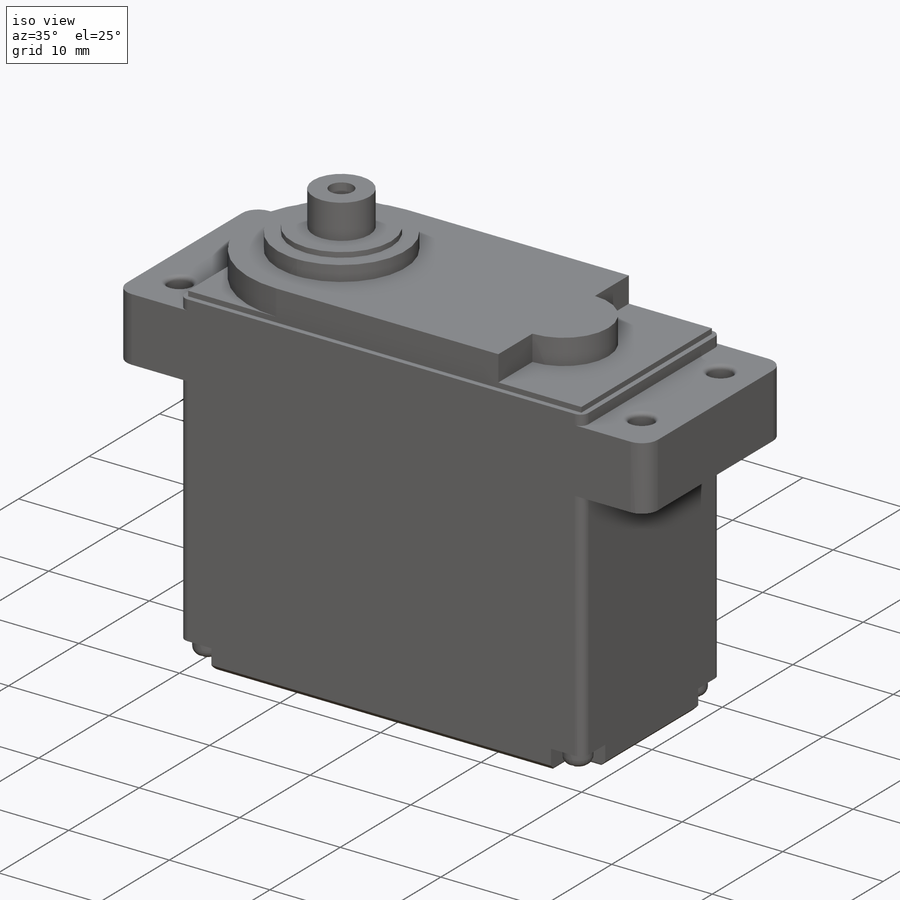
[diagram: iso view]
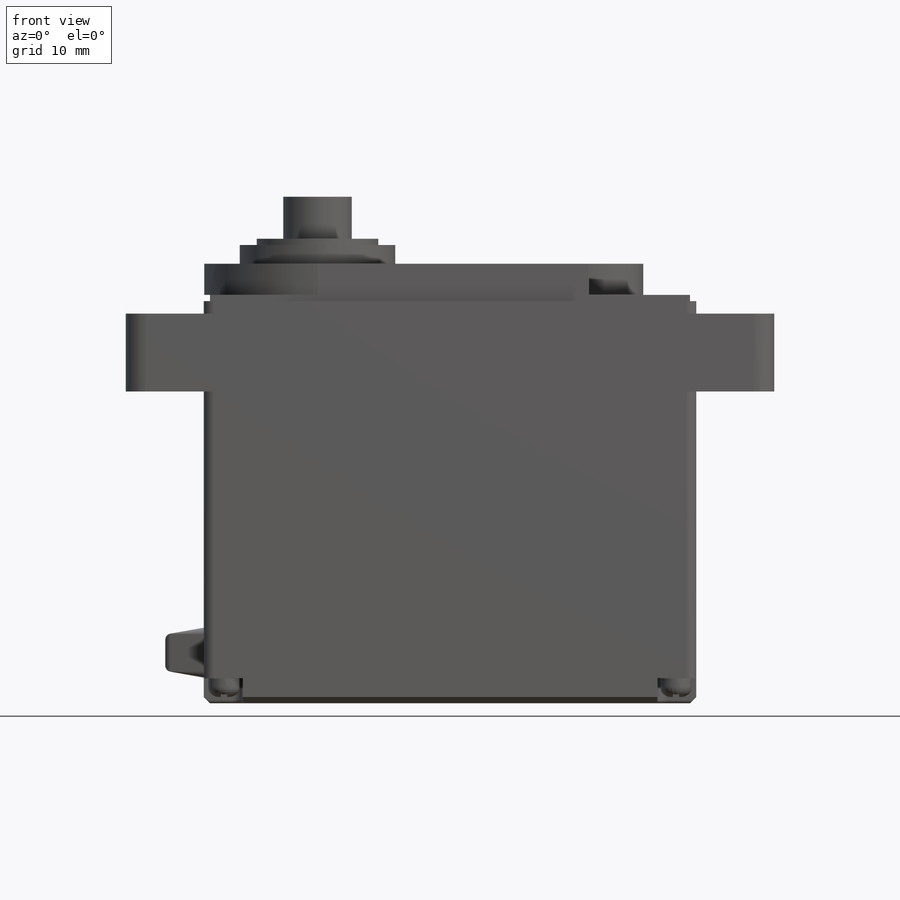
[diagram: front view]
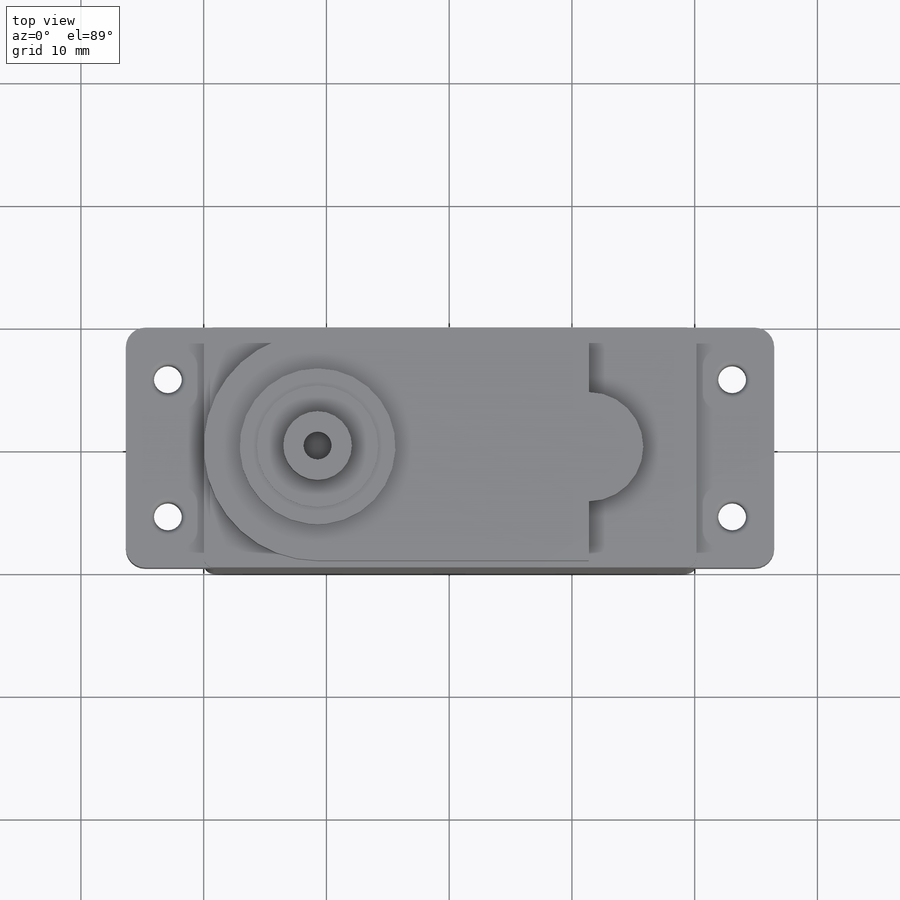
[diagram: top view]
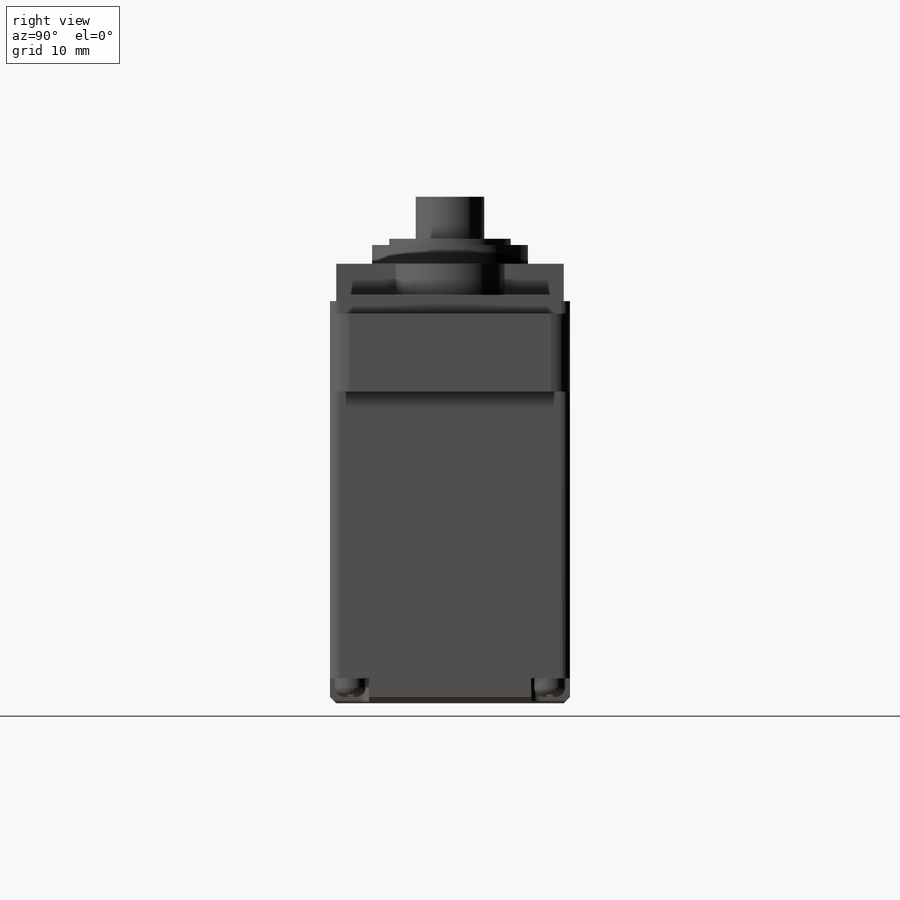
[diagram: right view]
SOLIDWORKS PART (.sldprt)
format: sldprt  version: not decoded by parser v0  size: 684,032 bytes
history: native  units: mm
features: extrude x30, sketch x12, fillet x7, cut_extrude x3, material x1, chamfer x1 (+12 scaffold rows collapsed)
feature tree (66):
  scaffold x12  (default folders/planes/origin — collapsed)
  material  "Material <não especificado>"
  sketch  "Sketch2"  dims[D1=40.132mm D2=19.558mm]
  extrude  "MainBody"  [1 undecoded]
  extrude  "PW2_UID_val"  Depth=33.274mm
  sketch  "Sketch3"  dims[D1=6.35mm D2=25.4mm]
  extrude  "Mounts"  [1 undecoded]
  extrude  "PW2_UID_val"  Depth=6.35mm
  sketch  "Sketch4"  dims[D1=0.0mm]
  extrude  "Mounts2"  [1 undecoded]
  extrude  "PW2_UID_val"  Depth=6.35mm
  sketch  "Sketch5"  dims[c1.D1=2.286mm c1.D2=2.286mm c1.D3=2.286mm c2.D2=~3.837163mm c2.D3=~3.837163mm c3.D2=3.048mm c3.D3=~3.337037mm c3.D4=~3.337037mm c4.D3=2.286mm]
  cut_extrude  "Cut-Extrude1"  [1 undecoded]
  extrude  "PW2_UID_val"  Depth=6.35mm
  sketch  "Sketch6"  dims[c1.D1=18.542mm c1.D2=8.89mm c1.D3=18.542mm c2.D2=29.464mm c2.D3=~30.888165mm c2.D4=~30.888165mm c3.D3=~30.888165mm c3.D2=31.369mm c4.D3=31.369mm c4.D4=90.0deg c5.D4=40.64mm c5.D3=40.64mm c5.D2=35.814mm c6.D3=35.814mm c6.D4=35.814mm c7.D3=40.259mm c7.D4=35.814mm c8.D3=35.814mm]
  extrude  "Extrude4"  [1 undecoded]
  extrude  "PW2_UID_val"  Depth=2.54mm
  sketch  "Sketch7"  dims[D1=12.7mm]
  extrude  "Extrude5"  [1 undecoded]
  extrude  "PW2_UID_val"  Depth=1.524mm
  sketch  "Sketch8"  dims[D1=9.906mm]
  extrude  "Extrude6"  [1 undecoded]
  extrude  "PW2_UID_val"  Depth=0.508mm
  fillet  "Fillet1"  [1 undecoded]
  extrude  "PW2_UID_val"  Depth=1.5875mm
  sketch  "Sketch9"  dims[D1=5.588mm D2=2.286mm]
  extrude  "Servo"  Depth=3.429mm
  fillet  "Fillet2"  [1 undecoded]
  extrude  "PW2_UID_val"  Depth=0.79375mm
  fillet  "Fillet3"  [1 undecoded]
  extrude  "PW2_UID_val"  Depth=0.396875mm
  extrude  "PW2_UID_val"  [1 undecoded]
  extrude  "PW2_UID_val"  [1 undecoded]
  sketch  "Sketch10"  dims[D1=0.508mm]
  cut_extrude  "Cut-Extrude2"  [1 undecoded]
  extrude  "PW2_UID_val"  Depth=0.508mm
  chamfer  "Chamfer1"  [1 undecoded]
  extrude  "PW2_UID_val"  Depth=0.508mm
  fillet  "Fillet4"  [1 undecoded]
  extrude  "PW2_UID_val"  Depth=0.79375mm
  sketch  "Sketch11"  dims[D9=0.762mm D1=3.175mm D2=3.175mm D3=3.175mm D4=3.175mm D5=3.175mm D6=3.175mm D7=3.175mm D8=3.175mm]
  cut_extrude  "Cut-Extrude3"  [1 undecoded]
  extrude  "PW2_UID_val"  Depth=2.032mm
  sketch  "Sketch12"  dims[c1.D1=2.54mm c1.D6=2.54mm c1.D7=2.54mm c1.D2=0.254mm c1.D3=0.254mm c1.D4=0.762mm c1.D5=0.762mm c2.D6=1.524mm c2.D7=1.524mm]
  extrude  "Extrude7"  [1 undecoded]
  extrude  "PW2_UID_val"  Depth=1.524mm
  fillet  "Fillet5"  [1 undecoded]
  extrude  "PW2_UID_val"  Depth=0.79375mm
  fillet  "Fillet6"  [1 undecoded]
  extrude  "PW2_UID_val"  Depth=0.254mm
  sketch  "Sketch13"  dims[D5=0.508mm D1=6.35mm D2=4.064mm D3=3.175mm D4=1.5875mm]
  extrude  "Extrude8"  [1 undecoded]
  extrude  "PW2_UID_val"  [1 undecoded]
  fillet  "Fillet7"  [1 undecoded]
  extrude  "PW2_UID_val"  Depth=0.508mm
decode coverage: 31 of 53 modeling features carry decoded parameters
note: ~ marks probable driven/reference dimensions
note: 22 parameter values undecoded
summary: no parameter record found for 22 features
note: suppression state not decoded; provenance and decode notes live in map.json
